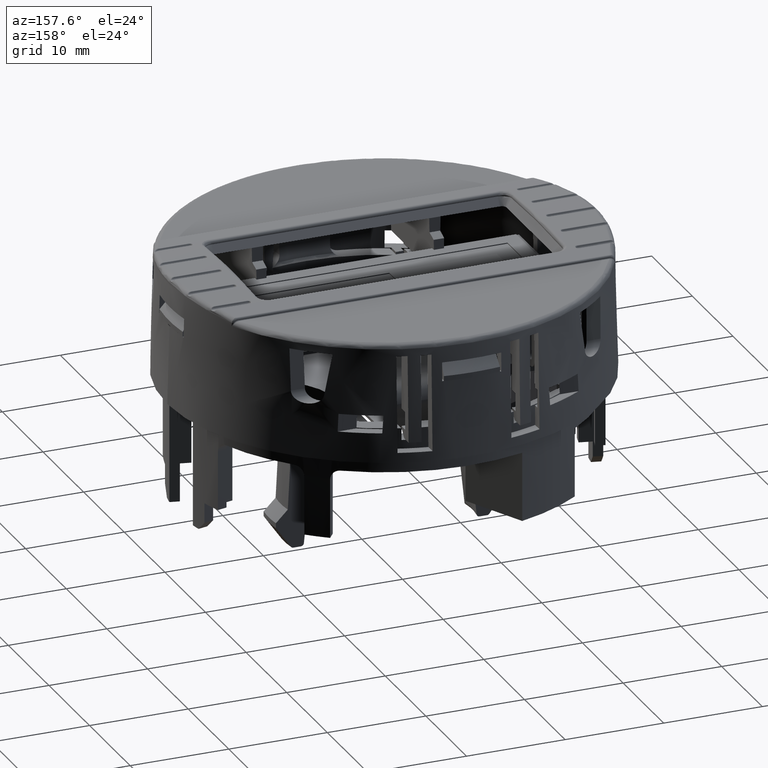
[diagram: clean part render]
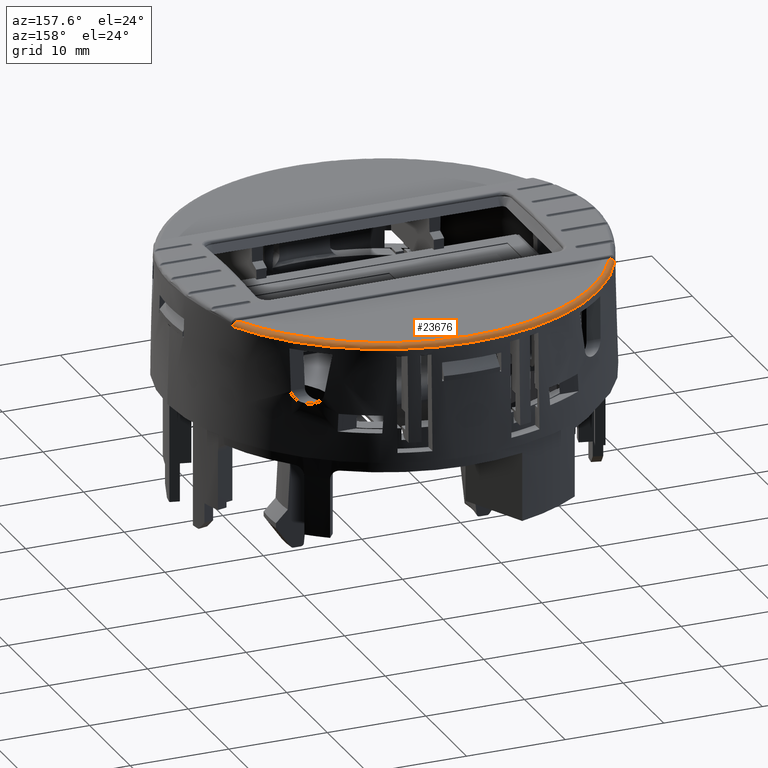
[diagram: same view with one face highlighted and labeled with its STEP entity id]
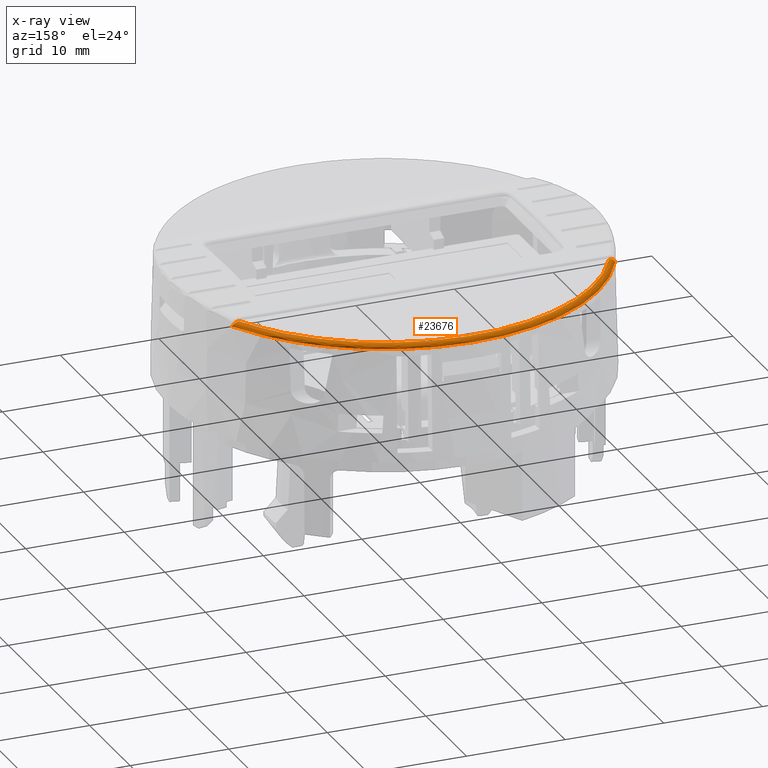
[diagram: x-ray of the same camera — body ghosted, the highlighted face saturated]
A machine part, auxiliary view. The second image highlights one B-rep face of the part: STEP entity #23676.
The next image is the same camera in x-ray: the body ghosted, the highlighted face saturated — about 0% of this face is hidden behind the body in this view.
In plain terms, the highlighted face is a freeform B-spline surface patch.
Its self-contained STEP definition (entity closure, byte-faithful):
#126 = CARTESIAN_POINT ( 'NONE',  ( -0.8508879826449969874, 0.3833943478407123573, 0.3408135638107587795 ) ) ;
#829 = CARTESIAN_POINT ( 'NONE',  ( -0.8513531549379194097, 0.3829561683005600070, 0.3401088038562091742 ) ) ;
#884 = CIRCLE ( 'NONE', #53090, 0.8542724081967855154 ) ;
#1169 = CARTESIAN_POINT ( 'NONE',  ( -0.8534047821653995003, 0.3804877159885735605, 0.3364773767758471590 ) ) ;
#1200 = VERTEX_POINT ( 'NONE', #44848 ) ;
#3711 = CARTESIAN_POINT ( 'NONE',  ( 0.6735630240320550355, 0.3835357487622950701, 0.3410480565173242828 ) ) ;
#4220 = CARTESIAN_POINT ( 'NONE',  ( -0.8312218200139255275, 0.3875105061992510369, 0.3543304616924947692 ) ) ;
#4403 = CARTESIAN_POINT ( 'NONE',  ( -0.5016117695442706692, 1.114026693952360425, 0.3464496410056366882 ) ) ;
#4941 = CARTESIAN_POINT ( 'NONE',  ( 0.6696527443626851817, 0.3858861723490716322, 0.3458470296318535975 ) ) ;
#6169 = B_SPLINE_CURVE_WITH_KNOTS ( 'NONE', 3,
 ( #67279, #63344, #14293, #19271, #62986, #8615 ),
 .UNSPECIFIED., .F., .F.,
 ( 4, 2, 4 ),
 ( 0.000000000000000000, 0.5000000000000000000, 1.000000000000000000 ),
 .UNSPECIFIED. ) ;
#6649 = CARTESIAN_POINT ( 'NONE',  ( -0.8448237081714232710, 0.3864596494971267449, 0.3479063618555597315 ) ) ;
#8345 = CARTESIAN_POINT ( 'NONE',  ( 0.6730409875853627932, 0.3839719195627707138, 0.3417921317348807664 ) ) ;
#8615 = CARTESIAN_POINT ( 'NONE',  ( 0.6660252382383189396, 0.3865848135414330367, 0.3491815208467165532 ) ) ;
#9037 = CARTESIAN_POINT ( 'NONE',  ( -0.8276123452416142001, 0.3877951373256960377, 0.3543305985462425478 ) ) ;
#9536 = CARTESIAN_POINT ( 'NONE',  ( -0.8431904375842618204, 0.3865847410581095267, 0.3491814955369504370 ) ) ;
#10083 = CARTESIAN_POINT ( 'NONE',  ( -0.4976997090445914873, 1.103475040556960440, 0.3543297985782431492 ) ) ;
#12990 = VERTEX_POINT ( 'NONE', #31297 ) ;
#13680 = CARTESIAN_POINT ( 'NONE',  ( 0.6719580707461069169, 0.3847430084582976195, 0.3432190994295873376 ) ) ;
#14024 = CARTESIAN_POINT ( 'NONE',  ( 0.6724599545574905246, 0.3844142967719799131, 0.3425825608181416460 ) ) ;
#14293 = CARTESIAN_POINT ( 'NONE',  ( 0.6572318634146168126, 0.3872932786127545879, 0.3536180925540104436 ) ) ;
#14703 = CARTESIAN_POINT ( 'NONE',  ( -0.08858267716535432601, 0.000000000000000000, 0.3351609635493657535 ) ) ;
#16434 = CARTESIAN_POINT ( 'NONE',  ( 0.3245893854039743065, 1.114412314751516142, 0.3351609635493648653 ) ) ;
#16460 = CARTESIAN_POINT ( 'NONE',  ( -0.8517293047824892049, 0.3825746139709223503, 0.3395141239037436920 ) ) ;
#16815 = CARTESIAN_POINT ( 'NONE',  ( -0.8468180328218780639, 0.3858861941429543307, 0.3458470934447755440 ) ) ;
#18302 = CARTESIAN_POINT ( 'NONE',  ( 0.6732882462192194550, 0.3837693176568515163, 0.3414432098026436435 ) ) ;
#18430 = B_SPLINE_CURVE_WITH_KNOTS ( 'NONE', 3,
 ( #54139, #1169, #65158, #60161, #16460, #829, #33479, #38138, #126, #59471, #27111, #32792, #16815 ),
 .UNSPECIFIED., .F., .F.,
 ( 4, 2, 2, 1, 2, 2, 4 ),
 ( 0.000000000000000000, 0.2500000000000232592, 0.3750000000000348610, 0.4375000000000272005, 0.4687500000000167644, 0.5000000000000062172, 1.000000000000000000 ),
 .UNSPECIFIED. ) ;
#19271 = CARTESIAN_POINT ( 'NONE',  ( 0.6624370055137652757, 0.3868861534647738964, 0.3516445611156162609 ) ) ;
#19351 = CARTESIAN_POINT ( 'NONE',  ( 0.6709570787090314292, 0.3853371525844556111, 0.3444376336840573316 ) ) ;
#19709 = ORIENTED_EDGE ( 'NONE', *, *, #49484, .F. ) ;
#20413 = EDGE_CURVE ( 'NONE', #37300, #1200, #49916, .T. ) ;
#20914 = CARTESIAN_POINT ( 'NONE',  ( 0.6676577801820816616, 0.3864597501727151108, 0.3479067875311265823 ) ) ;
#21421 = CARTESIAN_POINT ( 'NONE',  ( 0.6742054948088207489, 0.3656243051379423625, 0.3543297985782431492 ) ) ;
#21521 = ORIENTED_EDGE ( 'NONE', *, *, #45281, .T. ) ;
#21590 = CARTESIAN_POINT ( 'NONE',  ( -0.8416436661566338850, 0.3867026523659136683, 0.3503897866093317881 ) ) ;
#21753 = CARTESIAN_POINT ( 'NONE',  ( 0.6640223277338670460, 0.3607432470373069799, 0.3543307085974993220 ) ) ;
#23676 = ADVANCED_FACE ( 'NONE', ( #58401 ), #23954, .T. ) ;
#23954 =( BOUNDED_SURFACE ( )  B_SPLINE_SURFACE ( 3, 3, ( 
 ( #21753, #59117, #43455, #38117 ),
 ( #21421, #65142, #10083, #69771 ),
 ( #31380, #53079, #4403, #48799 ),
 ( #37768, #16434, #69427, #42403 ) ),
 .UNSPECIFIED., .F., .F., .F. ) 
 B_SPLINE_SURFACE_WITH_KNOTS ( ( 4, 4 ),
 ( 4, 4 ),
 ( 0.000000000000000000, 1.000000000000000000 ),
 ( 0.000000000000000000, 1.000000000000000000 ),
 .UNSPECIFIED. ) 
 GEOMETRIC_REPRESENTATION_ITEM ( )  RATIONAL_B_SPLINE_SURFACE ( (
 ( 1.000000000000000000, 0.6214914173176704359, 0.6214914173176704359, 1.000000000000000000),
 ( 0.8108867059026755308, 0.5039591281355108032, 0.5039591281355108032, 0.8108867059026755308),
 ( 0.8108867059026755308, 0.5039591281355108032, 0.5039591281355108032, 0.8108867059026755308),
 ( 1.000000000000000000, 0.6214914173176704359, 0.6214914173176704359, 1.000000000000000000) ) ) 
 REPRESENTATION_ITEM ( '' )  SURFACE ( )  );
#24690 = CARTESIAN_POINT ( 'NONE',  ( 0.6744670580905967050, 0.3827390645352793941, 0.3397231321464417864 ) ) ;
#25350 = CARTESIAN_POINT ( 'NONE',  ( 0.2944730927936123344, 1.066182457310104637, 0.3543307085974993220 ) ) ;
#26636 = EDGE_CURVE ( 'NONE', #35211, #63100, #56389, .T. ) ;
#26897 = ORIENTED_EDGE ( 'NONE', *, *, #54632, .T. ) ;
#27080 = CARTESIAN_POINT ( 'NONE',  ( 0.6696527443626851817, 0.3858861723490716322, 0.3458470296318535975 ) ) ;
#27111 = CARTESIAN_POINT ( 'NONE',  ( -0.8494752794351753122, 0.3846398257526993936, 0.3428842132642175855 ) ) ;
#28728 = ORIENTED_EDGE ( 'NONE', *, *, #20413, .T. ) ;
#29081 = VERTEX_POINT ( 'NONE', #63847 ) ;
#29653 = CARTESIAN_POINT ( 'NONE',  ( 0.6767771476532283836, 0.3794808110603633544, 0.3351609635494122164 ) ) ;
#30371 = CARTESIAN_POINT ( 'NONE',  ( 0.6757023483079356296, 0.3814934278983687088, 0.3377921214896539293 ) ) ;
#30687 = CARTESIAN_POINT ( 'NONE',  ( -0.4716383687394290480, 1.066182485472059183, 0.3543307085974993220 ) ) ;
#31297 = CARTESIAN_POINT ( 'NONE',  ( -0.8468180328218780639, 0.3858861941429543307, 0.3458470934447755440 ) ) ;
#31380 = CARTESIAN_POINT ( 'NONE',  ( 0.6814994308825537139, 0.3691204793140275275, 0.3464496410056366882 ) ) ;
#31438 = EDGE_CURVE ( 'NONE', #1200, #35211, #6169, .T. ) ;
#32792 = CARTESIAN_POINT ( 'NONE',  ( -0.8481010434255168429, 0.3854112249002552004, 0.3445060190559816049 ) ) ;
#33479 = CARTESIAN_POINT ( 'NONE',  ( -0.8511710230607084648, 0.3831337756610143641, 0.3403899721234081022 ) ) ;
#33940 = CARTESIAN_POINT ( 'NONE',  ( 0.6702936725098905812, 0.3856489725852756956, 0.3451770431033285291 ) ) ;
#34773 = ORIENTED_EDGE ( 'NONE', *, *, #38039, .T. ) ;
#35211 = VERTEX_POINT ( 'NONE', #52543 ) ;
#37052 = VERTEX_POINT ( 'NONE', #59144 ) ;
#37300 = VERTEX_POINT ( 'NONE', #61932 ) ;
#37768 = CARTESIAN_POINT ( 'NONE',  ( 0.6817659951215493397, 0.3692482505200297416, 0.3351609635493648653 ) ) ;
#38039 = EDGE_CURVE ( 'NONE', #29081, #37300, #50249, .T. ) ;
#38117 = CARTESIAN_POINT ( 'NONE',  ( -0.8411876820646061459, 0.3607432470372436417, 0.3543307085974993220 ) ) ;
#38138 = CARTESIAN_POINT ( 'NONE',  ( -0.8509996541361949385, 0.3832925709555157212, 0.3406472790900291758 ) ) ;
#38977 = CARTESIAN_POINT ( 'NONE',  ( -0.8468180328218780639, 0.3858861941429543307, 0.3458470934447755440 ) ) ;
#40036 = CARTESIAN_POINT ( 'NONE',  ( -0.8459784292191897537, 0.3861974136005272284, 0.3467244545700525205 ) ) ;
#40330 = CARTESIAN_POINT ( 'NONE',  ( 0.6734526061538913533, 0.3836313141114320868, 0.3412083473987649884 ) ) ;
#41353 = DIRECTION ( 'NONE',  ( 0.000000000000000000, 0.000000000000000000, -1.000000000000000000 ) ) ;
#41516 = VERTEX_POINT ( 'NONE', #61711 ) ;
#42403 = CARTESIAN_POINT ( 'NONE',  ( -0.8589313494522892167, 0.3692482505199649601, 0.3351609635493648653 ) ) ;
#42613 = CARTESIAN_POINT ( 'NONE',  ( 0.6688126221656550685, 0.3861975584364247260, 0.3467249504093934953 ) ) ;
#43455 = CARTESIAN_POINT ( 'NONE',  ( -0.4922380261791464706, 1.088743728360612728, 0.3543307085974992665 ) ) ;
#44848 = CARTESIAN_POINT ( 'NONE',  ( 0.6504471065137205077, 0.3877951983896291144, 0.3543305776019137765 ) ) ;
#45281 = EDGE_CURVE ( 'NONE', #41516, #12990, #18430, .T. ) ;
#45434 = ORIENTED_EDGE ( 'NONE', *, *, #31438, .T. ) ;
#47607 = CARTESIAN_POINT ( 'NONE',  ( 0.6660252382383189396, 0.3865848135414330367, 0.3491815208467165532 ) ) ;
#48799 = CARTESIAN_POINT ( 'NONE',  ( -0.8586647852132933689, 0.3691204793139626905, 0.3464496410056366882 ) ) ;
#49484 = EDGE_CURVE ( 'NONE', #41516, #37052, #884, .T. ) ;
#49916 =( BOUNDED_CURVE ( )  B_SPLINE_CURVE ( 3, ( #9037, #30687, #25350, #69103 ),
 .UNSPECIFIED., .F., .F. ) 
 B_SPLINE_CURVE_WITH_KNOTS ( ( 4, 4 ),
 ( 0.000000000000000000, 1.000000000000000000 ),
 .UNSPECIFIED. ) 
 CURVE ( )  GEOMETRIC_REPRESENTATION_ITEM ( )  RATIONAL_B_SPLINE_CURVE ( ( 1.000000000000000000, 0.6431002320686416418, 0.6431002320686416418, 1.000000000000000000 ) ) 
 REPRESENTATION_ITEM ( '' )  );
#49928 = B_SPLINE_CURVE_WITH_KNOTS ( 'NONE', 3,
 ( #54911, #33940, #19351, #13680, #14024, #8345, #18302, #40330, #3711, #24690, #30371, #29653 ),
 .UNSPECIFIED., .F., .F.,
 ( 4, 2, 1, 1, 2, 2, 4 ),
 ( 0.000000000000000000, 0.2499999999999512612, 0.3749999999999213962, 0.4374999999999165667, 0.4687499999999070188, 0.4999999999998974154, 1.000000000000000000 ),
 .UNSPECIFIED. ) ;
#50249 = B_SPLINE_CURVE_WITH_KNOTS ( 'NONE', 3,
 ( #9536, #21590, #64971, #53583, #4220, #53249 ),
 .UNSPECIFIED., .F., .F.,
 ( 4, 2, 4 ),
 ( 0.000000000000000000, 0.5000000000000000000, 1.000000000000000000 ),
 .UNSPECIFIED. ) ;
#51361 = ORIENTED_EDGE ( 'NONE', *, *, #59368, .T. ) ;
#52543 = CARTESIAN_POINT ( 'NONE',  ( 0.6660252382383189396, 0.3865848135414330367, 0.3491815208467165532 ) ) ;
#53079 = CARTESIAN_POINT ( 'NONE',  ( 0.3244464152134681756, 1.114026693952395286, 0.3464496410056366882 ) ) ;
#53090 = AXIS2_PLACEMENT_3D ( 'NONE', #14703, #41353, #61993 ) ;
#53249 = CARTESIAN_POINT ( 'NONE',  ( -0.8276123452416142001, 0.3877951373256960377, 0.3543305985462425478 ) ) ;
#53583 = CARTESIAN_POINT ( 'NONE',  ( -0.8343966076091307027, 0.3872933583520831169, 0.3536182489070729407 ) ) ;
#54139 = CARTESIAN_POINT ( 'NONE',  ( -0.8539425098549862092, 0.3794807946657700604, 0.3351609723909586558 ) ) ;
#54632 = EDGE_CURVE ( 'NONE', #63100, #37052, #49928, .T. ) ;
#54911 = CARTESIAN_POINT ( 'NONE',  ( 0.6696527443626851817, 0.3858861723490716322, 0.3458470296318535975 ) ) ;
#54965 = CARTESIAN_POINT ( 'NONE',  ( -0.8431904375842618204, 0.3865847410581095267, 0.3491814955369504370 ) ) ;
#56389 = B_SPLINE_CURVE_WITH_KNOTS ( 'NONE', 3,
 ( #47607, #20914, #42613, #4941 ),
 .UNSPECIFIED., .F., .F.,
 ( 4, 4 ),
 ( 0.000000000000000000, 1.000000000000000000 ),
 .UNSPECIFIED. ) ;
#58401 = FACE_OUTER_BOUND ( 'NONE', #59829, .T. ) ;
#59117 = CARTESIAN_POINT ( 'NONE',  ( 0.3150726718483463640, 1.088743728360646923, 0.3543307085974992665 ) ) ;
#59144 = CARTESIAN_POINT ( 'NONE',  ( 0.6767771476532283836, 0.3794808110603633544, 0.3351609635494122164 ) ) ;
#59368 = EDGE_CURVE ( 'NONE', #12990, #29081, #64719, .T. ) ;
#59471 = CARTESIAN_POINT ( 'NONE',  ( -0.8508618251464568072, 0.3834181798192966562, 0.3408524788130841143 ) ) ;
#59829 = EDGE_LOOP ( 'NONE', ( #63619, #26897, #19709, #21521, #51361, #34773, #28728, #45434 ) ) ;
#60161 = CARTESIAN_POINT ( 'NONE',  ( -0.8519960185715474976, 0.3822851705581160608, 0.3390744933131953909 ) ) ;
#61711 = CARTESIAN_POINT ( 'NONE',  ( -0.8539425098549862092, 0.3794807946657700604, 0.3351609723909586558 ) ) ;
#61932 = CARTESIAN_POINT ( 'NONE',  ( -0.8276123452416142001, 0.3877951373256960377, 0.3543305985462425478 ) ) ;
#61993 = DIRECTION ( 'NONE',  ( -1.000000000000000000, 0.000000000000000000, -1.279146074461517438E-15 ) ) ;
#62986 = CARTESIAN_POINT ( 'NONE',  ( 0.6644786161192290930, 0.3867025650051599817, 0.3503895743894164250 ) ) ;
#63100 = VERTEX_POINT ( 'NONE', #27080 ) ;
#63344 = CARTESIAN_POINT ( 'NONE',  ( 0.6540569324629659231, 0.3875104602875571458, 0.3543304449497719499 ) ) ;
#63619 = ORIENTED_EDGE ( 'NONE', *, *, #26636, .T. ) ;
#63847 = CARTESIAN_POINT ( 'NONE',  ( -0.8431904375842618204, 0.3865847410581095267, 0.3491814955369504370 ) ) ;
#64719 = B_SPLINE_CURVE_WITH_KNOTS ( 'NONE', 3,
 ( #38977, #40036, #6649, #54965 ),
 .UNSPECIFIED., .F., .F.,
 ( 4, 4 ),
 ( 0.000000000000000000, 1.000000000000000000 ),
 .UNSPECIFIED. ) ;
#64971 = CARTESIAN_POINT ( 'NONE',  ( -0.8396018361963097920, 0.3868862566651518620, 0.3516448153593438319 ) ) ;
#65142 = CARTESIAN_POINT ( 'NONE',  ( 0.3205343547137901594, 1.103475040556994857, 0.3543297985782431492 ) ) ;
#65158 = CARTESIAN_POINT ( 'NONE',  ( -0.8528207328988636204, 0.3812998931299109162, 0.3376232291805900676 ) ) ;
#67279 = CARTESIAN_POINT ( 'NONE',  ( 0.6504471065137205077, 0.3877951983896291144, 0.3543305776019137765 ) ) ;
#69103 = CARTESIAN_POINT ( 'NONE',  ( 0.6504471065137205077, 0.3877951983896291144, 0.3543305776019137765 ) ) ;
#69427 = CARTESIAN_POINT ( 'NONE',  ( -0.5017547397347769111, 1.114412314751481725, 0.3351609635493648653 ) ) ;
#69771 = CARTESIAN_POINT ( 'NONE',  ( -0.8513708491395601818, 0.3656243051378783582, 0.3543297985782431492 ) ) ;